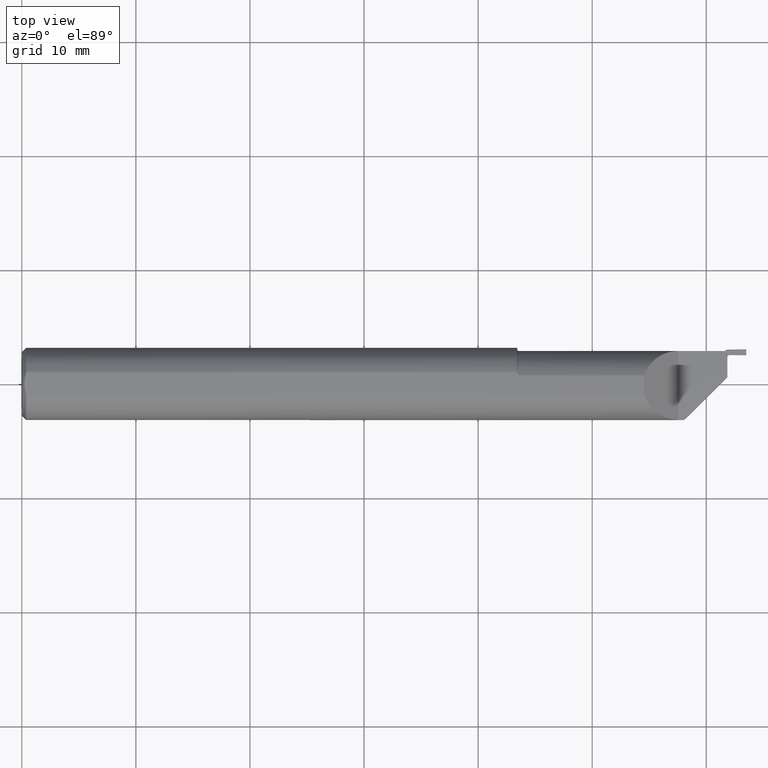
[diagram: clean part render]
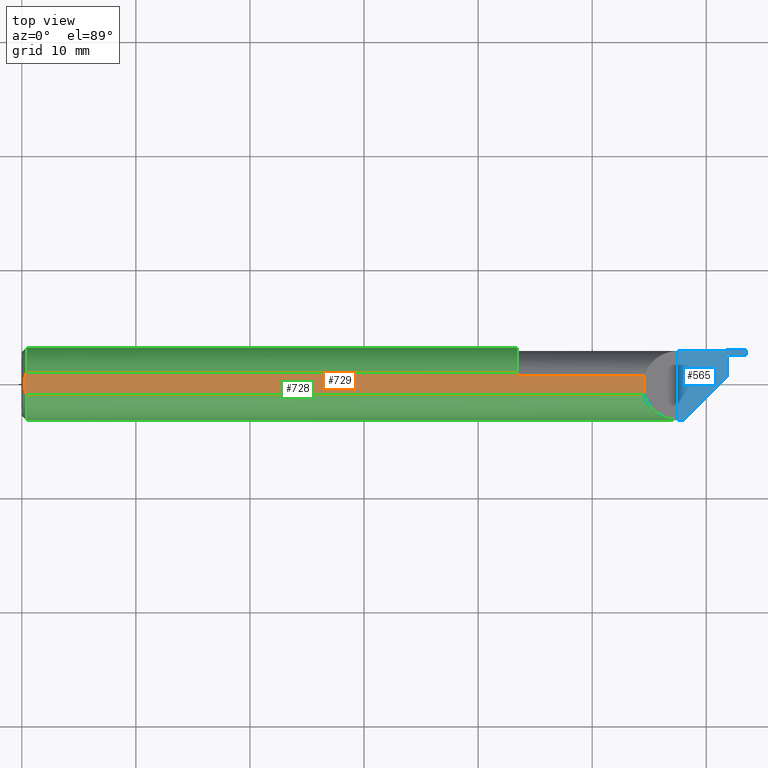
[diagram: same view with three faces highlighted in distinct colors, each labeled with its STEP entity id]
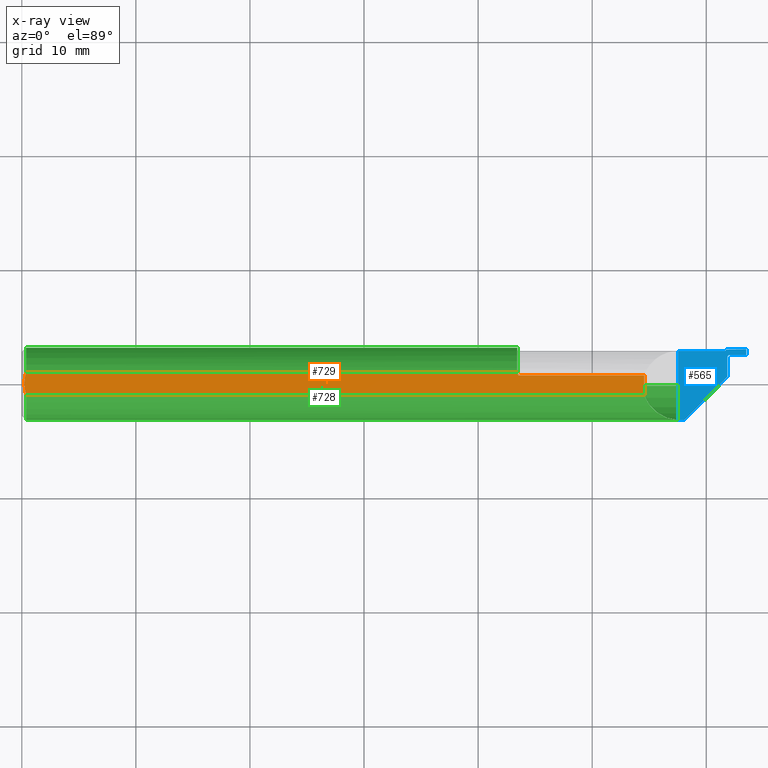
[diagram: x-ray of the same camera — body ghosted, the three highlighted faces saturated]
A machine part, top view with three faces highlighted in distinct colors.
The next image is the same camera in x-ray (body ghosted, the three faces saturated) — at least one of them is partly hidden behind the body in this view.
Their STEP definitions:

[orange] entity #729 — the highlighted planar face has unit normal (0, 0, -1).
#5 = CARTESIAN_POINT ( 'NONE',  ( 0.008999999999999641967, 4.252717492586794387E-17, 0.1188499999999999973 ) ) ;
#19 = LINE ( 'NONE', #764, #166 ) ;
#23 = CARTESIAN_POINT ( 'NONE',  ( 1.714473844127618607, 0.02757490814094754397, 0.1188499999999999973 ) ) ;
#25 = CARTESIAN_POINT ( 'NONE',  ( 0.01499999999997804305, -0.03823872382811423221, 0.1188499999999999973 ) ) ;
#29 = CARTESIAN_POINT ( 'NONE',  ( 0.000000000000000000, -0.03823872382807772669, 0.1188499999999999973 ) ) ;
#41 = CARTESIAN_POINT ( 'NONE',  ( 0.009000000000000025341, 0.006491061014450950212, 0.1188499999999999973 ) ) ;
#57 = EDGE_CURVE ( 'NONE', #338, #90, #780, .T. ) ;
#70 = CARTESIAN_POINT ( 'NONE',  ( 1.713227278469431347, 0.02855906026573752990, 0.1188499999999999973 ) ) ;
#81 = CARTESIAN_POINT ( 'NONE',  ( 0.008999999999999641967, 4.252717492586794387E-17, 0.1188499999999999973 ) ) ;
#90 = VERTEX_POINT ( 'NONE', #744 ) ;
#125 = CARTESIAN_POINT ( 'NONE',  ( 0.01310472768618554072, 0.03205063163538453969, 0.1188499999999999696 ) ) ;
#132 = ORIENTED_EDGE ( 'NONE', *, *, #666, .T. ) ;
#136 = VERTEX_POINT ( 'NONE', #602 ) ;
#152 = CARTESIAN_POINT ( 'NONE',  ( 1.713990696821216186, 0.02785570178468178143, 0.1188499999999999973 ) ) ;
#155 = FACE_OUTER_BOUND ( 'NONE', #224, .T. ) ;
#159 = PLANE ( 'NONE',  #701 ) ;
#166 = VECTOR ( 'NONE', #226, 39.37007874015748143 ) ;
#169 = B_SPLINE_CURVE_WITH_KNOTS ( 'NONE', 3,
 ( #571, #23, #152, #70, #704, #759, #431, #708, #619, #420 ),
 .UNSPECIFIED., .F., .F.,
 ( 4, 2, 2, 2, 4 ),
 ( 1.511091346206754193E-05, 5.470638640597475020E-05, 9.430185934988194831E-05, 0.0001734928052377072679, 0.0003318746970133577986 ),
 .UNSPECIFIED. ) ;
#192 = B_SPLINE_CURVE_WITH_KNOTS ( 'NONE', 3,
 ( #725, #125, #305, #507, #41, #501 ),
 .UNSPECIFIED., .F., .F.,
 ( 4, 2, 4 ),
 ( 0.002939763849513850943, 0.003427521671950178872, 0.003915279494386507235 ),
 .UNSPECIFIED. ) ;
#224 = EDGE_LOOP ( 'NONE', ( #355, #484, #578, #551, #132, #269, #861 ) ) ;
#226 = DIRECTION ( 'NONE',  ( -1.000000000000000000, -1.096770570373022412E-16, 0.000000000000000000 ) ) ;
#251 = CARTESIAN_POINT ( 'NONE',  ( 0.000000000000000000, -0.2248499999999999943, 0.1188499999999999973 ) ) ;
#253 = EDGE_CURVE ( 'NONE', #90, #498, #19, .T. ) ;
#269 = ORIENTED_EDGE ( 'NONE', *, *, #318, .T. ) ;
#305 = CARTESIAN_POINT ( 'NONE',  ( 0.01160054105591650300, 0.02577801096047404456, 0.1188500000000000112 ) ) ;
#318 = EDGE_CURVE ( 'NONE', #564, #757, #376, .T. ) ;
#338 = VERTEX_POINT ( 'NONE', #741 ) ;
#355 = ORIENTED_EDGE ( 'NONE', *, *, #57, .T. ) ;
#358 = CARTESIAN_POINT ( 'NONE',  ( 0.009000000000000016667, -0.006484286479682693435, 0.1188499999999999973 ) ) ;
#363 = CARTESIAN_POINT ( 'NONE',  ( 0.01158016045613162459, -0.02568400999800457205, 0.1188499999999999973 ) ) ;
#376 = B_SPLINE_CURVE_WITH_KNOTS ( 'NONE', 3,
 ( #81, #358, #433, #363, #641, #25 ),
 .UNSPECIFIED., .F., .F.,
 ( 4, 2, 4 ),
 ( 0.003915279494386507235, 0.004402528257931054290, 0.004889777021475600477 ),
 .UNSPECIFIED. ) ;
#420 = CARTESIAN_POINT ( 'NONE',  ( 1.710170960735225121, 0.03823872382821605354, 0.1188499999999555051 ) ) ;
#431 = CARTESIAN_POINT ( 'NONE',  ( 1.711730602344048391, 0.03126357590803285902, 0.1188499999999999973 ) ) ;
#433 = CARTESIAN_POINT ( 'NONE',  ( 0.009533601434317374654, -0.01291622207163062135, 0.1188500000000000112 ) ) ;
#446 = VECTOR ( 'NONE', #853, 39.37007874015748143 ) ;
#484 = ORIENTED_EDGE ( 'NONE', *, *, #253, .T. ) ;
#498 = VERTEX_POINT ( 'NONE', #842 ) ;
#501 = CARTESIAN_POINT ( 'NONE',  ( 0.008999999999999641967, 4.252717492586794387E-17, 0.1188499999999999973 ) ) ;
#507 = CARTESIAN_POINT ( 'NONE',  ( 0.009546064770316114653, 0.01302659621470520467, 0.1188499999999999696 ) ) ;
#524 = DIRECTION ( 'NONE',  ( 0.000000000000000000, 0.000000000000000000, -1.000000000000000000 ) ) ;
#527 = LINE ( 'NONE', #29, #629 ) ;
#534 = VECTOR ( 'NONE', #807, 39.37007874015748143 ) ;
#541 = EDGE_CURVE ( 'NONE', #498, #136, #169, .T. ) ;
#551 = ORIENTED_EDGE ( 'NONE', *, *, #881, .F. ) ;
#564 = VERTEX_POINT ( 'NONE', #5 ) ;
#571 = CARTESIAN_POINT ( 'NONE',  ( 1.715000000000000080, 0.02757490814094757173, 0.1188500000000000528 ) ) ;
#578 = ORIENTED_EDGE ( 'NONE', *, *, #541, .T. ) ;
#584 = DIRECTION ( 'NONE',  ( -1.000000000000000000, 0.000000000000000000, -0.000000000000000000 ) ) ;
#602 = CARTESIAN_POINT ( 'NONE',  ( 1.710170960735225121, 0.03823872382821605354, 0.1188499999999555051 ) ) ;
#615 = EDGE_CURVE ( 'NONE', #338, #757, #527, .T. ) ;
#619 = CARTESIAN_POINT ( 'NONE',  ( 1.710379839581037675, 0.03621100365931467779, 0.1188499999999999834 ) ) ;
#629 = VECTOR ( 'NONE', #798, 39.37007874015748143 ) ;
#641 = CARTESIAN_POINT ( 'NONE',  ( 0.01310613948468477771, -0.03205524117839877313, 0.1188499999999999973 ) ) ;
#648 = CARTESIAN_POINT ( 'NONE',  ( 0.01499999999997804305, -0.03823872382811423221, 0.1188499999999999973 ) ) ;
#666 = EDGE_CURVE ( 'NONE', #767, #564, #192, .T. ) ;
#671 = LINE ( 'NONE', #880, #534 ) ;
#701 = AXIS2_PLACEMENT_3D ( 'NONE', #251, #524, #584 ) ;
#704 = CARTESIAN_POINT ( 'NONE',  ( 1.712918520445144255, 0.02898633677933140987, 0.1188499999999999834 ) ) ;
#708 = CARTESIAN_POINT ( 'NONE',  ( 1.710754412305492078, 0.03420765519299450580, 0.1188499999999999973 ) ) ;
#725 = CARTESIAN_POINT ( 'NONE',  ( 0.01500000000000023190, 0.03823872382807772669, 0.1188499999999999973 ) ) ;
#729 = ADVANCED_FACE ( 'NONE', ( #155 ), #159, .F. ) ;
#730 = CARTESIAN_POINT ( 'NONE',  ( 0.01500000000000023190, 0.03823872382807772669, 0.1188499999999999973 ) ) ;
#741 = CARTESIAN_POINT ( 'NONE',  ( 2.148000000000000131, -0.03823872382807772669, 0.1188499999999999973 ) ) ;
#744 = CARTESIAN_POINT ( 'NONE',  ( 2.148000000000000131, 0.02757490814094780071, 0.1188499999999999973 ) ) ;
#757 = VERTEX_POINT ( 'NONE', #648 ) ;
#759 = CARTESIAN_POINT ( 'NONE',  ( 1.712115487717478457, 0.03030911079244100886, 0.1188500000000000112 ) ) ;
#764 = CARTESIAN_POINT ( 'NONE',  ( 2.430000000000000160, 0.02757490814094789092, 0.1188499999999999973 ) ) ;
#767 = VERTEX_POINT ( 'NONE', #730 ) ;
#780 = LINE ( 'NONE', #785, #446 ) ;
#785 = CARTESIAN_POINT ( 'NONE',  ( 2.148000000000000131, 0.03823872382807772669, 0.1188499999999999973 ) ) ;
#798 = DIRECTION ( 'NONE',  ( -1.000000000000000000, -0.000000000000000000, -0.000000000000000000 ) ) ;
#807 = DIRECTION ( 'NONE',  ( 1.000000000000000000, 0.000000000000000000, 0.000000000000000000 ) ) ;
#842 = CARTESIAN_POINT ( 'NONE',  ( 1.715000000000000080, 0.02757490814094757173, 0.1188500000000000528 ) ) ;
#853 = DIRECTION ( 'NONE',  ( -0.000000000000000000, 1.000000000000000000, 0.000000000000000000 ) ) ;
#861 = ORIENTED_EDGE ( 'NONE', *, *, #615, .F. ) ;
#880 = CARTESIAN_POINT ( 'NONE',  ( 0.000000000000000000, 0.03823872382807772669, 0.1188499999999999973 ) ) ;
#881 = EDGE_CURVE ( 'NONE', #767, #136, #671, .T. ) ;

[blue] entity #565 — the highlighted planar face has unit normal (0, 0, -1).
#7 = LINE ( 'NONE', #637, #577 ) ;
#9 = VECTOR ( 'NONE', #235, 39.37007874015748854 ) ;
#21 = DIRECTION ( 'NONE',  ( -1.000000000000000000, 0.000000000000000000, 0.000000000000000000 ) ) ;
#31 = DIRECTION ( 'NONE',  ( -0.7071067811865483499, -0.7071067811865467956, 0.000000000000000000 ) ) ;
#32 = EDGE_CURVE ( 'NONE', #432, #522, #109, .T. ) ;
#33 = LINE ( 'NONE', #796, #811 ) ;
#39 = ORIENTED_EDGE ( 'NONE', *, *, #298, .F. ) ;
#86 = VERTEX_POINT ( 'NONE', #686 ) ;
#89 = VERTEX_POINT ( 'NONE', #735 ) ;
#108 = LINE ( 'NONE', #819, #558 ) ;
#109 = CIRCLE ( 'NONE', #847, 0.008000000000000024453 ) ;
#149 = EDGE_CURVE ( 'NONE', #89, #436, #108, .T. ) ;
#153 = ORIENTED_EDGE ( 'NONE', *, *, #690, .F. ) ;
#165 = DIRECTION ( 'NONE',  ( -1.000000000000000000, -0.000000000000000000, -0.000000000000000000 ) ) ;
#167 = CIRCLE ( 'NONE', #282, 0.004999999999999810152 ) ;
#184 = LINE ( 'NONE', #795, #387 ) ;
#196 = ORIENTED_EDGE ( 'NONE', *, *, #583, .F. ) ;
#207 = LINE ( 'NONE', #415, #398 ) ;
#213 = PLANE ( 'NONE',  #672 ) ;
#214 = ORIENTED_EDGE ( 'NONE', *, *, #607, .F. ) ;
#220 = ORIENTED_EDGE ( 'NONE', *, *, #429, .F. ) ;
#235 = DIRECTION ( 'NONE',  ( -0.9998476951563912696, 0.01745240643727479640, -0.000000000000000000 ) ) ;
#237 = CARTESIAN_POINT ( 'NONE',  ( 2.430000000000000160, 0.1138492383597806412, 0.000000000000000000 ) ) ;
#241 = LINE ( 'NONE', #237, #886 ) ;
#282 = AXIS2_PLACEMENT_3D ( 'NONE', #489, #713, #787 ) ;
#296 = CARTESIAN_POINT ( 'NONE',  ( 2.265000000000000124, -0.2248499999999999943, 0.000000000000000000 ) ) ;
#298 = EDGE_CURVE ( 'NONE', #86, #436, #7, .T. ) ;
#315 = DIRECTION ( 'NONE',  ( 0.000000000000000000, -1.000000000000000000, 0.000000000000000000 ) ) ;
#319 = LINE ( 'NONE', #366, #9 ) ;
#324 = DIRECTION ( 'NONE',  ( 0.000000000000000000, 1.000000000000000000, 0.000000000000000000 ) ) ;
#329 = CARTESIAN_POINT ( 'NONE',  ( 2.265000000000000124, -0.1248500000000000026, 0.000000000000000000 ) ) ;
#340 = DIRECTION ( 'NONE',  ( 0.000000000000000000, 1.000000000000000000, 0.000000000000000000 ) ) ;
#356 = FACE_OUTER_BOUND ( 'NONE', #618, .T. ) ;
#362 = ORIENTED_EDGE ( 'NONE', *, *, #403, .T. ) ;
#366 = CARTESIAN_POINT ( 'NONE',  ( 2.443139619251498473, 0.09984173999758823304, 0.000000000000000000 ) ) ;
#371 = CARTESIAN_POINT ( 'NONE',  ( 2.435000000000000053, 0.02514999999999998487, 0.000000000000000000 ) ) ;
#383 = DIRECTION ( 'NONE',  ( 0.000000000000000000, 0.000000000000000000, 1.000000000000000000 ) ) ;
#387 = VECTOR ( 'NONE', #31, 39.37007874015748143 ) ;
#398 = VECTOR ( 'NONE', #340, 39.37007874015748143 ) ;
#403 = EDGE_CURVE ( 'NONE', #871, #724, #241, .T. ) ;
#415 = CARTESIAN_POINT ( 'NONE',  ( 2.265000000000000124, -0.2248499999999999943, 0.000000000000000000 ) ) ;
#417 = DIRECTION ( 'NONE',  ( 0.9998476951563914916, 0.01745240643726935284, 0.000000000000000000 ) ) ;
#429 = EDGE_CURVE ( 'NONE', #751, #703, #184, .T. ) ;
#432 = VERTEX_POINT ( 'NONE', #457 ) ;
#436 = VERTEX_POINT ( 'NONE', #872 ) ;
#447 = LINE ( 'NONE', #783, #736 ) ;
#457 = CARTESIAN_POINT ( 'NONE',  ( 2.443139705841341325, 0.09984173848615689184, 2.027543432797695280E-17 ) ) ;
#475 = VERTEX_POINT ( 'NONE', #329 ) ;
#485 = CARTESIAN_POINT ( 'NONE',  ( 2.435000000000000053, 0.09184295843633712153, 0.000000000000000000 ) ) ;
#489 = CARTESIAN_POINT ( 'NONE',  ( 2.424999999999999822, 0.1188492383597805901, 0.000000000000000000 ) ) ;
#490 = ORIENTED_EDGE ( 'NONE', *, *, #149, .T. ) ;
#519 = DIRECTION ( 'NONE',  ( -1.000000000000000000, -1.096770570373022412E-16, 0.000000000000000000 ) ) ;
#522 = VERTEX_POINT ( 'NONE', #485 ) ;
#558 = VECTOR ( 'NONE', #324, 39.37007874015748143 ) ;
#565 = ADVANCED_FACE ( 'NONE', ( #356 ), #213, .F. ) ;
#577 = VECTOR ( 'NONE', #417, 39.37007874015748143 ) ;
#583 = EDGE_CURVE ( 'NONE', #475, #724, #207, .T. ) ;
#589 = CARTESIAN_POINT ( 'NONE',  ( 2.284999999999999698, -0.1248500000000000026, 0.000000000000000000 ) ) ;
#594 = CARTESIAN_POINT ( 'NONE',  ( 2.265000000000000124, 0.1138492383597806273, 0.000000000000000000 ) ) ;
#596 = EDGE_CURVE ( 'NONE', #86, #871, #167, .T. ) ;
#607 = EDGE_CURVE ( 'NONE', #89, #432, #319, .T. ) ;
#618 = EDGE_LOOP ( 'NONE', ( #39, #640, #362, #196, #689, #220, #153, #835, #214, #490 ) ) ;
#637 = CARTESIAN_POINT ( 'NONE',  ( 2.577575458406805797, 0.1212033230231064490, 0.000000000000000000 ) ) ;
#640 = ORIENTED_EDGE ( 'NONE', *, *, #596, .T. ) ;
#643 = CARTESIAN_POINT ( 'NONE',  ( 2.443000000000000060, 0.09184295843633712153, 0.000000000000000000 ) ) ;
#672 = AXIS2_PLACEMENT_3D ( 'NONE', #296, #688, #849 ) ;
#686 = CARTESIAN_POINT ( 'NONE',  ( 2.429995071809771368, 0.1186272977928927580, -1.872330685094113637E-13 ) ) ;
#688 = DIRECTION ( 'NONE',  ( 0.000000000000000000, 0.000000000000000000, -1.000000000000000000 ) ) ;
#689 = ORIENTED_EDGE ( 'NONE', *, *, #788, .F. ) ;
#690 = EDGE_CURVE ( 'NONE', #522, #751, #33, .T. ) ;
#703 = VERTEX_POINT ( 'NONE', #589 ) ;
#713 = DIRECTION ( 'NONE',  ( 0.000000000000000000, 0.000000000000000000, -1.000000000000000000 ) ) ;
#724 = VERTEX_POINT ( 'NONE', #594 ) ;
#735 = CARTESIAN_POINT ( 'NONE',  ( 2.500000000000000000, 0.09884923835978046136, 0.000000000000000000 ) ) ;
#736 = VECTOR ( 'NONE', #165, 39.37007874015748143 ) ;
#751 = VERTEX_POINT ( 'NONE', #371 ) ;
#783 = CARTESIAN_POINT ( 'NONE',  ( 0.000000000000000000, -0.1248500000000000026, 0.000000000000000000 ) ) ;
#787 = DIRECTION ( 'NONE',  ( -1.000000000000000000, 0.000000000000000000, 0.000000000000000000 ) ) ;
#788 = EDGE_CURVE ( 'NONE', #703, #475, #447, .T. ) ;
#795 = CARTESIAN_POINT ( 'NONE',  ( 2.435000000000000053, 0.02514999999999998487, 0.000000000000000000 ) ) ;
#796 = CARTESIAN_POINT ( 'NONE',  ( 2.435000000000000053, 0.09184295843633712153, 0.000000000000000000 ) ) ;
#811 = VECTOR ( 'NONE', #315, 39.37007874015748143 ) ;
#819 = CARTESIAN_POINT ( 'NONE',  ( 2.500000000000000000, -0.2248499999999999943, 0.000000000000000000 ) ) ;
#835 = ORIENTED_EDGE ( 'NONE', *, *, #32, .F. ) ;
#847 = AXIS2_PLACEMENT_3D ( 'NONE', #643, #383, #21 ) ;
#849 = DIRECTION ( 'NONE',  ( -1.000000000000000000, 0.000000000000000000, -0.000000000000000000 ) ) ;
#871 = VERTEX_POINT ( 'NONE', #875 ) ;
#872 = CARTESIAN_POINT ( 'NONE',  ( 2.500000000000000000, 0.1198492383597805910, 6.722907171908147379E-16 ) ) ;
#875 = CARTESIAN_POINT ( 'NONE',  ( 2.424999999999999822, 0.1138492383597806967, 0.000000000000000000 ) ) ;
#886 = VECTOR ( 'NONE', #519, 39.37007874015748143 ) ;

[green] entity #728 — the highlighted cylindrical surface (edge-blend (fillet) strip) has radius 3.1712 mm, axis along (-1, -0, -0).
#12 = CARTESIAN_POINT ( 'NONE',  ( 1.711914333455625048, 0.007945130463939900287, -0.1246218459314067384 ) ) ;
#14 = ORIENTED_EDGE ( 'NONE', *, *, #333, .T. ) ;
#20 = DIRECTION ( 'NONE',  ( 0.000000000000000000, 0.000000000000000000, -1.000000000000000000 ) ) ;
#29 = CARTESIAN_POINT ( 'NONE',  ( 0.000000000000000000, -0.03823872382807772669, 0.1188499999999999973 ) ) ;
#42 = AXIS2_PLACEMENT_3D ( 'NONE', #451, #82, #513 ) ;
#46 = DIRECTION ( 'NONE',  ( 0.000000000000000000, -1.000000000000000000, 0.000000000000000000 ) ) ;
#47 = CARTESIAN_POINT ( 'NONE',  ( 2.285000000000000142, -0.1248500000000000165, -0.07133877615075744083 ) ) ;
#69 = VERTEX_POINT ( 'NONE', #295 ) ;
#71 = CARTESIAN_POINT ( 'NONE',  ( 1.710159383103249331, 0.03488974151477051283, -0.1202838750561012054 ) ) ;
#82 = DIRECTION ( 'NONE',  ( 1.000000000000000000, 0.000000000000000000, 0.000000000000000000 ) ) ;
#93 = DIRECTION ( 'NONE',  ( 1.000000000000000000, 0.000000000000000000, -0.000000000000000000 ) ) ;
#98 = CARTESIAN_POINT ( 'NONE',  ( 2.265000000000000124, -0.1248362927998104277, 0.001850000000000442436 ) ) ;
#104 = ORIENTED_EDGE ( 'NONE', *, *, #815, .T. ) ;
#117 = CARTESIAN_POINT ( 'NONE',  ( 1.710170960735225121, 0.03823872382821605354, 0.1188499999999555051 ) ) ;
#136 = VERTEX_POINT ( 'NONE', #602 ) ;
#154 = CARTESIAN_POINT ( 'NONE',  ( 1.715000000000000080, -0.003894890230802504089, -0.1247892316271320273 ) ) ;
#165 = DIRECTION ( 'NONE',  ( -1.000000000000000000, -0.000000000000000000, -0.000000000000000000 ) ) ;
#180 = CARTESIAN_POINT ( 'NONE',  ( 1.709999999999999964, 0.05327609239522881901, -0.1129122689484851477 ) ) ;
#189 = EDGE_CURVE ( 'NONE', #69, #703, #726, .T. ) ;
#195 = DIRECTION ( 'NONE',  ( -1.000000000000000000, -1.096770570373022289E-16, 0.000000000000000000 ) ) ;
#204 = ORIENTED_EDGE ( 'NONE', *, *, #615, .T. ) ;
#206 = AXIS2_PLACEMENT_3D ( 'NONE', #655, #243, #791 ) ;
#212 = EDGE_LOOP ( 'NONE', ( #378, #14, #818, #297, #303, #216, #204, #444, #555, #416, #104, #569 ) ) ;
#216 = ORIENTED_EDGE ( 'NONE', *, *, #466, .T. ) ;
#221 = CARTESIAN_POINT ( 'NONE',  ( 1.714001066425367981, -0.002780069005519711887, -0.1248193845498108134 ) ) ;
#238 = DIRECTION ( 'NONE',  ( 0.000000000000000000, 0.000000000000000000, -1.000000000000000000 ) ) ;
#243 = DIRECTION ( 'NONE',  ( -1.000000000000000000, -0.000000000000000000, -0.000000000000000000 ) ) ;
#258 = AXIS2_PLACEMENT_3D ( 'NONE', #846, #779, #20 ) ;
#283 = CARTESIAN_POINT ( 'NONE',  ( 1.710866796786096655, 0.02034732159406118027, -0.1232801871523468984 ) ) ;
#289 = CARTESIAN_POINT ( 'NONE',  ( 1.712802800785914181, 0.001752548865571712652, -0.1248438142879184920 ) ) ;
#295 = CARTESIAN_POINT ( 'NONE',  ( 2.405955109769241318, -0.003894890230758989852, -0.1247892316271314583 ) ) ;
#297 = ORIENTED_EDGE ( 'NONE', *, *, #788, .T. ) ;
#303 = ORIENTED_EDGE ( 'NONE', *, *, #750, .F. ) ;
#304 = DIRECTION ( 'NONE',  ( 1.000000000000000000, 1.096770570373022412E-16, -0.000000000000000000 ) ) ;
#311 = EDGE_CURVE ( 'NONE', #418, #413, #781, .T. ) ;
#322 = CARTESIAN_POINT ( 'NONE',  ( 2.284999999999999698, -0.1248500000000000026, 0.000000000000000000 ) ) ;
#329 = CARTESIAN_POINT ( 'NONE',  ( 2.265000000000000124, -0.1248500000000000026, 0.000000000000000000 ) ) ;
#333 = EDGE_CURVE ( 'NONE', #413, #69, #588, .T. ) ;
#338 = VERTEX_POINT ( 'NONE', #741 ) ;
#378 = ORIENTED_EDGE ( 'NONE', *, *, #311, .T. ) ;
#380 = CARTESIAN_POINT ( 'NONE',  ( 2.265000000000000124, -0.1248362927998104277, 0.001850000000000442436 ) ) ;
#386 = CARTESIAN_POINT ( 'NONE',  ( 1.710051374558060777, 0.04338063434112023053, 0.1171956449637627240 ) ) ;
#388 = CARTESIAN_POINT ( 'NONE',  ( 2.405955109769241318, -0.003894890230758989852, -0.1247892316271314583 ) ) ;
#405 = B_SPLINE_CURVE_WITH_KNOTS ( 'NONE', 3,
 ( #117, #386, #739, #459 ),
 .UNSPECIFIED., .F., .F.,
 ( 4, 4 ),
 ( 6.528325437629129570E-07, 0.0004120090794528270405 ),
 .UNSPECIFIED. ) ;
#413 = VERTEX_POINT ( 'NONE', #453 ) ;
#416 = ORIENTED_EDGE ( 'NONE', *, *, #881, .T. ) ;
#418 = VERTEX_POINT ( 'NONE', #180 ) ;
#428 = CARTESIAN_POINT ( 'NONE',  ( 1.714682184764742212, -0.003894890230884898684, -0.1247892316271487501 ) ) ;
#442 = AXIS2_PLACEMENT_3D ( 'NONE', #653, #93, #238 ) ;
#444 = ORIENTED_EDGE ( 'NONE', *, *, #669, .T. ) ;
#447 = LINE ( 'NONE', #783, #736 ) ;
#450 = CARTESIAN_POINT ( 'NONE',  ( 2.148000000000000131, -0.03823872382807772669, 0.1188499999999999973 ) ) ;
#451 = CARTESIAN_POINT ( 'NONE',  ( 0.01500000000000023190, 0.000000000000000000, 0.000000000000000000 ) ) ;
#453 = CARTESIAN_POINT ( 'NONE',  ( 1.715000000000000080, -0.003894890230802504089, -0.1247892316271320273 ) ) ;
#454 = CARTESIAN_POINT ( 'NONE',  ( 1.709999999999999964, 0.05327609239522881901, 0.1129122689484851477 ) ) ;
#459 = CARTESIAN_POINT ( 'NONE',  ( 1.709999999999999964, 0.05327609239522881901, 0.1129122689484851477 ) ) ;
#466 = EDGE_CURVE ( 'NONE', #766, #338, #682, .T. ) ;
#475 = VERTEX_POINT ( 'NONE', #329 ) ;
#483 = CARTESIAN_POINT ( 'NONE',  ( 1.712200838743483944, 0.005458513102771771902, -0.1247550989284078732 ) ) ;
#491 = CARTESIAN_POINT ( 'NONE',  ( 1.714128168530276497, -0.003067870172106181188, -0.1248125831559575433 ) ) ;
#497 = VECTOR ( 'NONE', #304, 39.37007874015748143 ) ;
#513 = DIRECTION ( 'NONE',  ( 0.000000000000000000, 0.000000000000000000, -1.000000000000000000 ) ) ;
#521 = FACE_OUTER_BOUND ( 'NONE', #212, .T. ) ;
#527 = LINE ( 'NONE', #29, #629 ) ;
#534 = VECTOR ( 'NONE', #807, 39.37007874015748143 ) ;
#555 = ORIENTED_EDGE ( 'NONE', *, *, #753, .T. ) ;
#557 = CARTESIAN_POINT ( 'NONE',  ( 1.709999999999999964, 0.05327609239522881901, -0.1129122689484851477 ) ) ;
#562 = CARTESIAN_POINT ( 'NONE',  ( 1.713488581732706573, -0.001301457453720019676, -0.1248446920006879429 ) ) ;
#567 = CARTESIAN_POINT ( 'NONE',  ( 1.713029506829477633, 0.0005194235571594113575, -0.1248548210850110168 ) ) ;
#569 = ORIENTED_EDGE ( 'NONE', *, *, #844, .T. ) ;
#576 = CIRCLE ( 'NONE', #258, 0.1248500000000000026 ) ;
#587 = VERTEX_POINT ( 'NONE', #836 ) ;
#588 = LINE ( 'NONE', #790, #497 ) ;
#589 = CARTESIAN_POINT ( 'NONE',  ( 2.284999999999999698, -0.1248500000000000026, 0.000000000000000000 ) ) ;
#593 = CARTESIAN_POINT ( 'NONE',  ( 2.209554582113422150, -0.1240146245109684658, 0.05729541788657826346 ) ) ;
#602 = CARTESIAN_POINT ( 'NONE',  ( 1.710170960735225121, 0.03823872382821605354, 0.1188499999999555051 ) ) ;
#610 = CARTESIAN_POINT ( 'NONE',  ( 1.709999999999999964, 0.000000000000000000, 0.000000000000000000 ) ) ;
#615 = EDGE_CURVE ( 'NONE', #338, #757, #527, .T. ) ;
#629 = VECTOR ( 'NONE', #798, 39.37007874015748143 ) ;
#632 = CARTESIAN_POINT ( 'NONE',  ( 1.711178079990817613, 0.01539321907340817502, -0.1239975791389462817 ) ) ;
#648 = CARTESIAN_POINT ( 'NONE',  ( 0.01499999999997804305, -0.03823872382811423221, 0.1188499999999999973 ) ) ;
#653 = CARTESIAN_POINT ( 'NONE',  ( 2.265000000000000124, 0.000000000000000000, 0.000000000000000000 ) ) ;
#655 = CARTESIAN_POINT ( 'NONE',  ( 0.000000000000000000, 0.000000000000000000, 0.000000000000000000 ) ) ;
#661 = CARTESIAN_POINT ( 'NONE',  ( 2.334651056416633175, -0.07519894358336676188, -0.1225637073796052717 ) ) ;
#669 = EDGE_CURVE ( 'NONE', #757, #587, #576, .T. ) ;
#671 = LINE ( 'NONE', #880, #534 ) ;
#682 =( BOUNDED_CURVE ( )  B_SPLINE_CURVE ( 3, ( #380, #593, #738, #450 ),
 .UNSPECIFIED., .F., .F. ) 
 B_SPLINE_CURVE_WITH_KNOTS ( ( 4, 4 ),
 ( 4.727207304024301671, 5.971905359455142559 ),
 .UNSPECIFIED. ) 
 CURVE ( )  GEOMETRIC_REPRESENTATION_ITEM ( )  RATIONAL_B_SPLINE_CURVE ( ( 1.000000000000000000, 0.8750075631735800830, 0.8750075631735800830, 1.000000000000000000 ) ) 
 REPRESENTATION_ITEM ( '' )  );
#703 = VERTEX_POINT ( 'NONE', #589 ) ;
#717 = AXIS2_PLACEMENT_3D ( 'NONE', #610, #195, #46 ) ;
#719 = CIRCLE ( 'NONE', #717, 0.1248500000000000026 ) ;
#726 =( BOUNDED_CURVE ( )  B_SPLINE_CURVE ( 3, ( #388, #661, #47, #322 ),
 .UNSPECIFIED., .F., .F. ) 
 B_SPLINE_CURVE_WITH_KNOTS ( ( 4, 4 ),
 ( 4.743590600530187551, 6.283185307179586232 ),
 .UNSPECIFIED. ) 
 CURVE ( )  GEOMETRIC_REPRESENTATION_ITEM ( )  RATIONAL_B_SPLINE_CURVE ( ( 1.000000000000000000, 0.8120344829072682069, 0.8120344829072682069, 1.000000000000000000 ) ) 
 REPRESENTATION_ITEM ( '' )  );
#728 = ADVANCED_FACE ( 'NONE', ( #521 ), #870, .T. ) ;
#730 = CARTESIAN_POINT ( 'NONE',  ( 0.01500000000000023190, 0.03823872382807772669, 0.1188499999999999973 ) ) ;
#736 = VECTOR ( 'NONE', #165, 39.37007874015748143 ) ;
#738 = CARTESIAN_POINT ( 'NONE',  ( 2.164983538797464746, -0.09102535957339832895, 0.1018664612025355354 ) ) ;
#739 = CARTESIAN_POINT ( 'NONE',  ( 1.709999999999999964, 0.04842420652407892351, 0.1152015641895578202 ) ) ;
#741 = CARTESIAN_POINT ( 'NONE',  ( 2.148000000000000131, -0.03823872382807772669, 0.1188499999999999973 ) ) ;
#748 = VERTEX_POINT ( 'NONE', #454 ) ;
#750 = EDGE_CURVE ( 'NONE', #766, #475, #784, .T. ) ;
#753 = EDGE_CURVE ( 'NONE', #587, #767, #755, .T. ) ;
#755 = CIRCLE ( 'NONE', #42, 0.1248500000000000026 ) ;
#757 = VERTEX_POINT ( 'NONE', #648 ) ;
#766 = VERTEX_POINT ( 'NONE', #98 ) ;
#767 = VERTEX_POINT ( 'NONE', #730 ) ;
#768 = CARTESIAN_POINT ( 'NONE',  ( 1.714459317357118318, -0.003597743371579674183, -0.1247984334200071543 ) ) ;
#779 = DIRECTION ( 'NONE',  ( 1.000000000000000000, 0.000000000000000000, 0.000000000000000000 ) ) ;
#781 = B_SPLINE_CURVE_WITH_KNOTS ( 'NONE', 3,
 ( #557, #826, #71, #283, #632, #12, #483, #289, #567, #562, #838, #221, #491, #768, #428, #154 ),
 .UNSPECIFIED., .F., .F.,
 ( 4, 2, 2, 2, 2, 2, 2, 4 ),
 ( 0.002227140341838172635, 0.003001118262295396442, 0.003388107222524008345, 0.003581601702638314080, 0.003678348942695467381, 0.003726722562724040996, 0.003750909372738324334, 0.003775096182752607239 ),
 .UNSPECIFIED. ) ;
#783 = CARTESIAN_POINT ( 'NONE',  ( 0.000000000000000000, -0.1248500000000000026, 0.000000000000000000 ) ) ;
#784 = CIRCLE ( 'NONE', #442, 0.1248500000000000026 ) ;
#788 = EDGE_CURVE ( 'NONE', #703, #475, #447, .T. ) ;
#790 = CARTESIAN_POINT ( 'NONE',  ( 2.069999999999999840, -0.003894890230801667085, -0.1247892316271320134 ) ) ;
#791 = DIRECTION ( 'NONE',  ( 0.000000000000000000, 0.000000000000000000, 1.000000000000000000 ) ) ;
#798 = DIRECTION ( 'NONE',  ( -1.000000000000000000, -0.000000000000000000, -0.000000000000000000 ) ) ;
#807 = DIRECTION ( 'NONE',  ( 1.000000000000000000, 0.000000000000000000, 0.000000000000000000 ) ) ;
#815 = EDGE_CURVE ( 'NONE', #136, #748, #405, .T. ) ;
#818 = ORIENTED_EDGE ( 'NONE', *, *, #189, .T. ) ;
#826 = CARTESIAN_POINT ( 'NONE',  ( 1.709999999999954667, 0.04425422002746417366, -0.1171691146422183250 ) ) ;
#836 = CARTESIAN_POINT ( 'NONE',  ( 0.01500000000000023190, 0.000000000000000000, -0.1248500000000000026 ) ) ;
#838 = CARTESIAN_POINT ( 'NONE',  ( 1.713659596382578476, -0.001905378462869895297, -0.1248368223129266708 ) ) ;
#844 = EDGE_CURVE ( 'NONE', #748, #418, #719, .T. ) ;
#846 = CARTESIAN_POINT ( 'NONE',  ( 0.01500000000000023190, 0.000000000000000000, 0.000000000000000000 ) ) ;
#870 = CYLINDRICAL_SURFACE ( 'NONE', #206, 0.1248500000000000026 ) ;
#880 = CARTESIAN_POINT ( 'NONE',  ( 0.000000000000000000, 0.03823872382807772669, 0.1188499999999999973 ) ) ;
#881 = EDGE_CURVE ( 'NONE', #767, #136, #671, .T. ) ;